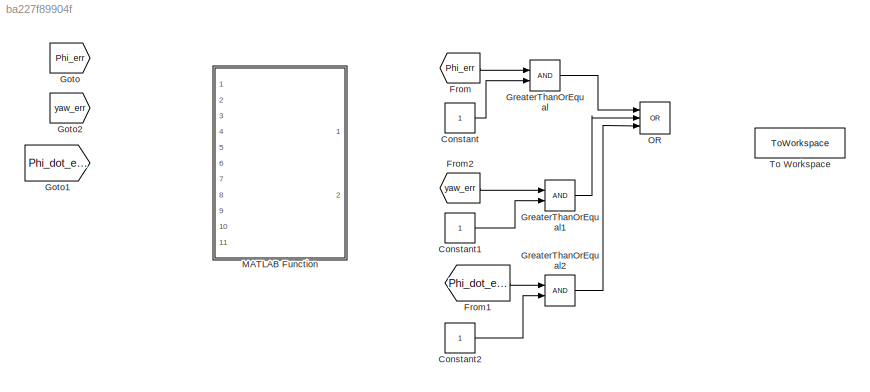
MODEL slx_ba227f89904f
KIND model
CONFIG AbsTol = auto
CONFIG EnableMultiTasking = off
CONFIG FixedStep = auto
CONFIG MaxStep = auto
CONFIG MinStep = auto
CONFIG RelTol = 1e-3
CONFIG SampleTimeConstraint = Unconstrained
CONFIG SolverName = VariableStepAuto
CONFIG StartTime = 0.0
CONFIG StopTime = 10.0
BLOCK [Constant] Constant
BLOCK [Constant] Constant1
BLOCK [Constant] Constant2
BLOCK [From] From
  GotoTag = Phi_err
  TagVisibility = global
BLOCK [From] From1
  GotoTag = Phi_dot_err
  TagVisibility = global
BLOCK [From] From2
  GotoTag = yaw_err
  TagVisibility = global
BLOCK [Goto] Goto
  GotoTag = Phi_err
  TagVisibility = global
BLOCK [Goto] Goto1
  GotoTag = Phi_dot_err
  TagVisibility = global
BLOCK [Goto] Goto2
  GotoTag = yaw_err
  TagVisibility = global
BLOCK [RelationalOperator] GreaterThanOrEqual
  InputSameDT = off
  OutDataTypeStr = boolean
  Ports = [2, 1]
  RndMeth = Simplest
BLOCK [RelationalOperator] GreaterThanOrEqual1
  InputSameDT = off
  OutDataTypeStr = boolean
  Ports = [2, 1]
  RndMeth = Simplest
BLOCK [RelationalOperator] GreaterThanOrEqual2
  InputSameDT = off
  OutDataTypeStr = boolean
  Ports = [2, 1]
  RndMeth = Simplest
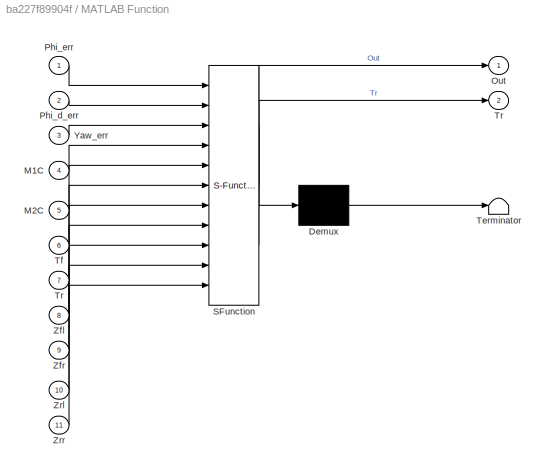
BLOCK [SubSystem] MATLAB Function
  ErrorFcn = Stateflow.Translate.translate
  PermitHierarchicalResolution = ExplicitOnly
  Ports = [11, 2]
  RequestExecContextInheritance = off
  SFBlockType = MATLAB Function
  TreatAsAtomicUnit = on
BLOCK [Demux] MATLAB Function/ Demux 
  Outputs = 1
  Ports = [1, 1]
BLOCK [S-Function] MATLAB Function/ SFunction 
  EnableBusSupport = on
  FunctionName = sf_sfun
  PortCounts = [11 3]
  Ports = [11, 3]
  SFcnIsStateOwnerBlock = off
  SFunctionDeploymentMode = off
  Tag = Stateflow S-Function 2
BLOCK [Terminator] MATLAB Function/ Terminator 
BLOCK [Inport] MATLAB Function/M1C
  Port = 4
BLOCK [Inport] MATLAB Function/M2C
  Port = 5
BLOCK [Outport] MATLAB Function/Out
BLOCK [Inport] MATLAB Function/Phi_d_err
  Port = 2
BLOCK [Inport] MATLAB Function/Phi_err
BLOCK [Inport] MATLAB Function/Tf
  Port = 6
BLOCK [Outport] MATLAB Function/Tr
  Port = 2
BLOCK [Inport] MATLAB Function/Tr 
  Port = 7
BLOCK [Inport] MATLAB Function/Yaw_err
  Port = 3
BLOCK [Inport] MATLAB Function/Zfl
  Port = 8
BLOCK [Inport] MATLAB Function/Zfr
  Port = 9
BLOCK [Inport] MATLAB Function/Zrl
  Port = 10
BLOCK [Inport] MATLAB Function/Zrr
  Port = 11
BLOCK [Logic] OR
  AllPortsSameDT = off
  Inputs = 3
  Operator = OR
  OutDataTypeStr = boolean
  Ports = [3, 1]
BLOCK [ToWorkspace] To Workspace
  FixptAsFi = on
  MaxDataPoints = inf
  Ports = [1]
  SampleTime = -1
  SaveFormat = Timeseries
  VariableName = A
LINE Constant1:1 -> GreaterThanOrEqual1:2
LINE Constant2:1 -> GreaterThanOrEqual2:2
LINE Constant:1 -> GreaterThanOrEqual:2
LINE From1:1 -> GreaterThanOrEqual2:1
LINE From2:1 -> GreaterThanOrEqual1:1
LINE From:1 -> GreaterThanOrEqual:1
LINE GreaterThanOrEqual1:1 -> OR:2
LINE GreaterThanOrEqual2:1 -> OR:3
LINE GreaterThanOrEqual:1 -> OR:1
CHART MATLAB Function states=1 transitions=1
  STATE_LABEL 'eML_blk_kernel()'
  STATE_LABEL 'SCRIPT:\nfunction [Out,Tr]= fcn(Phi_err,Phi_d_err,Yaw_err,M1C,M2C,Tf,Tr,Zfl,Zfr,Zrl,Zrr)\n%%L1\nPhi_err_L1 = 0;\nPhi_d_err_L1 = 0;\nYaw_err_L1 = 0;\n\n%%L2\nPhi_err_L2 = 0;\nPhi_d_err_L2 = 0;\nYaw_err_L2 = 0;\n\n%%L3\nPhi_err_L3 = 0;\nPhi_d_err_L3 = 0;\nYaw_err_L3 = 0;\n\n%%L1 Check condition\nif(Phi_err> Phi_err_L1 || Phi_d_err>Phi_d_err_L1 || Yaw_err>Yaw_err_L1)\n    {\n        L1.Phi_err = Phi_err;\n        L1.Phi_...<+1176ch>'
CHART  states=0 transitions=0
